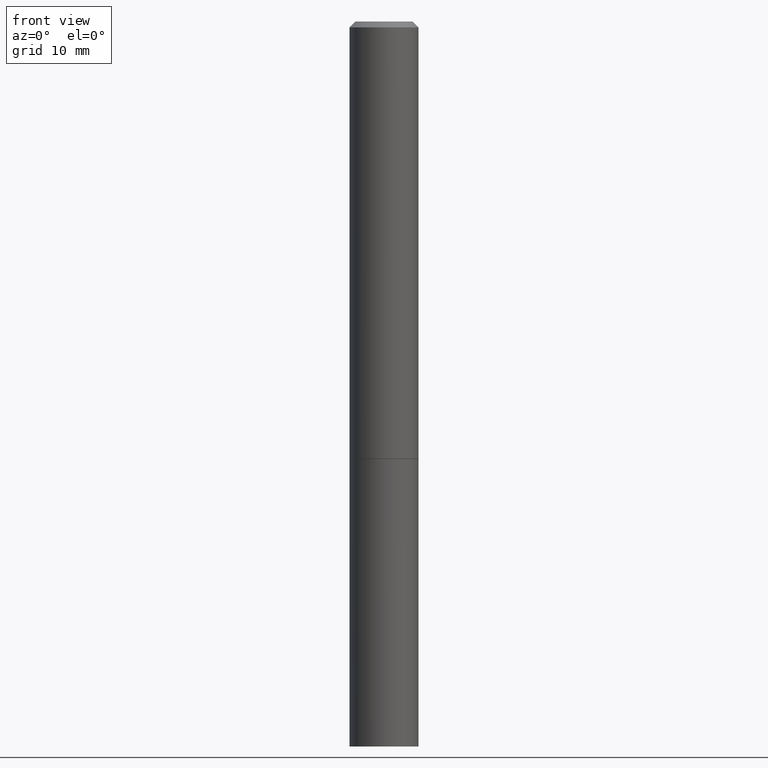
[diagram: clean part render]
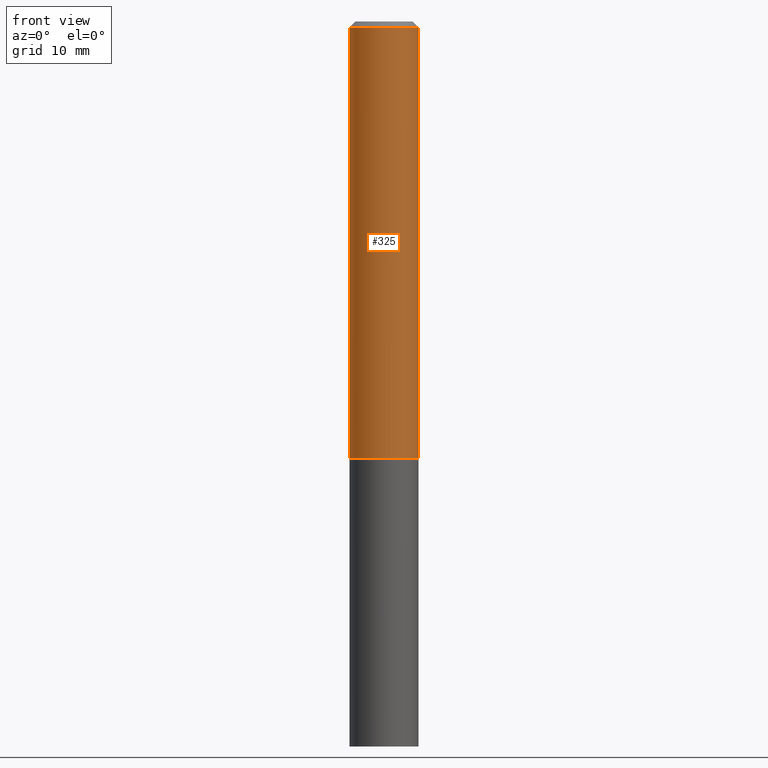
[diagram: same view with one face highlighted and labeled with its STEP entity id]
A machine part, front view. The second image highlights one B-rep face of the part: STEP entity #325.
In plain terms, the highlighted cylindrical surface (edge-blend (fillet) strip) has radius 2.9997 mm, axis along (-0, 0, 1).
Its self-contained STEP definition (entity closure, byte-faithful):
#9 = AXIS2_PLACEMENT_3D ( 'NONE', #68, #363, #136 ) ;
#14 = EDGE_CURVE ( 'NONE', #151, #89, #218, .T. ) ;
#21 = CARTESIAN_POINT ( 'NONE',  ( 4.890937612370281041E-31, -6.982962677686302702E-17, -0.02000000000000003511 ) ) ;
#28 = CIRCLE ( 'NONE', #117, 0.1180999999999998301 ) ;
#63 = ORIENTED_EDGE ( 'NONE', *, *, #360, .F. ) ;
#68 = CARTESIAN_POINT ( 'NONE',  ( 0.000000000000000000, 0.000000000000000000, 0.000000000000000000 ) ) ;
#89 = VERTEX_POINT ( 'NONE', #217 ) ;
#96 = EDGE_LOOP ( 'NONE', ( #63, #326, #180, #113 ) ) ;
#97 = VECTOR ( 'NONE', #302, 39.37007874015748143 ) ;
#103 = AXIS2_PLACEMENT_3D ( 'NONE', #125, #164, #258 ) ;
#113 = ORIENTED_EDGE ( 'NONE', *, *, #135, .F. ) ;
#117 = AXIS2_PLACEMENT_3D ( 'NONE', #21, #170, #301 ) ;
#125 = CARTESIAN_POINT ( 'NONE',  ( 3.655975865246779683E-29, -5.219764601570503930E-15, -1.495000000000000329 ) ) ;
#131 = CARTESIAN_POINT ( 'NONE',  ( -0.1180999999999999134, 8.391509709326777040E-16, -5.809262341591039580E-30 ) ) ;
#135 = EDGE_CURVE ( 'NONE', #142, #331, #28, .T. ) ;
#136 = DIRECTION ( 'NONE',  ( 1.000000000000000000, -6.982962677686266711E-15, 4.876176775795935793E-29 ) ) ;
#142 = VERTEX_POINT ( 'NONE', #362 ) ;
#151 = VERTEX_POINT ( 'NONE', #270 ) ;
#164 = DIRECTION ( 'NONE',  ( -2.445468806185136597E-29, 3.491481338843145583E-15, 1.000000000000000000 ) ) ;
#165 = LINE ( 'NONE', #131, #97 ) ;
#169 = FACE_OUTER_BOUND ( 'NONE', #96, .T. ) ;
#170 = DIRECTION ( 'NONE',  ( -2.445468806185136597E-29, 3.491481338843145583E-15, 1.000000000000000000 ) ) ;
#180 = ORIENTED_EDGE ( 'NONE', *, *, #366, .T. ) ;
#215 = DIRECTION ( 'NONE',  ( -2.445468806185136877E-29, 3.491481338843145188E-15, 1.000000000000000000 ) ) ;
#217 = CARTESIAN_POINT ( 'NONE',  ( 0.1180999999999999966, -6.044452493805252192E-15, -1.495000000000000329 ) ) ;
#218 = CIRCLE ( 'NONE', #103, 0.1180999999999999966 ) ;
#242 = CYLINDRICAL_SURFACE ( 'NONE', #9, 0.1180999999999999134 ) ;
#258 = DIRECTION ( 'NONE',  ( 1.000000000000000000, -6.982962677686265133E-15, 0.000000000000000000 ) ) ;
#270 = CARTESIAN_POINT ( 'NONE',  ( -0.1180999999999999966, -1.805646143241003445E-15, -1.495000000000000329 ) ) ;
#297 = CARTESIAN_POINT ( 'NONE',  ( 0.1180999999999999134, -8.246878922347474737E-16, 5.758764772214996237E-30 ) ) ;
#301 = DIRECTION ( 'NONE',  ( 1.000000000000000000, -6.982962677686266711E-15, 0.000000000000000000 ) ) ;
#302 = DIRECTION ( 'NONE',  ( -2.445468806185136877E-29, 3.491481338843145188E-15, 1.000000000000000000 ) ) ;
#321 = VECTOR ( 'NONE', #215, 39.37007874015748143 ) ;
#325 = ADVANCED_FACE ( 'NONE', ( #169 ), #242, .T. ) ;
#326 = ORIENTED_EDGE ( 'NONE', *, *, #14, .T. ) ;
#331 = VERTEX_POINT ( 'NONE', #336 ) ;
#334 = LINE ( 'NONE', #297, #321 ) ;
#336 = CARTESIAN_POINT ( 'NONE',  ( 0.1180999999999998301, -8.800544403136797528E-16, -0.02000000000000003511 ) ) ;
#360 = EDGE_CURVE ( 'NONE', #151, #142, #165, .T. ) ;
#362 = CARTESIAN_POINT ( 'NONE',  ( -0.1180999999999998301, 7.548582654578837811E-16, -0.02000000000000003511 ) ) ;
#363 = DIRECTION ( 'NONE',  ( -2.445468806185136597E-29, 3.491481338843145583E-15, 1.000000000000000000 ) ) ;
#366 = EDGE_CURVE ( 'NONE', #89, #331, #334, .T. ) ;